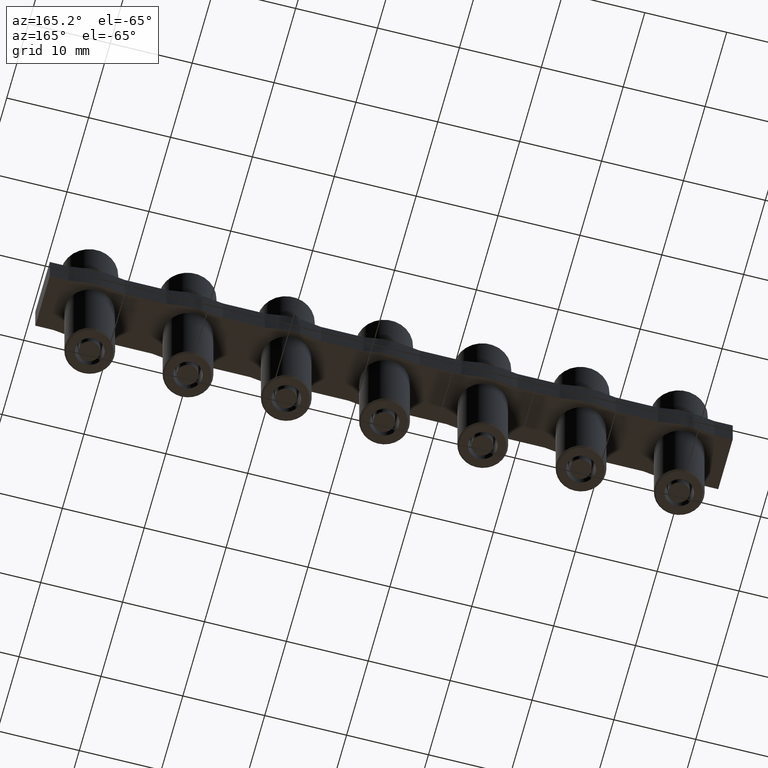
[diagram: clean part render]
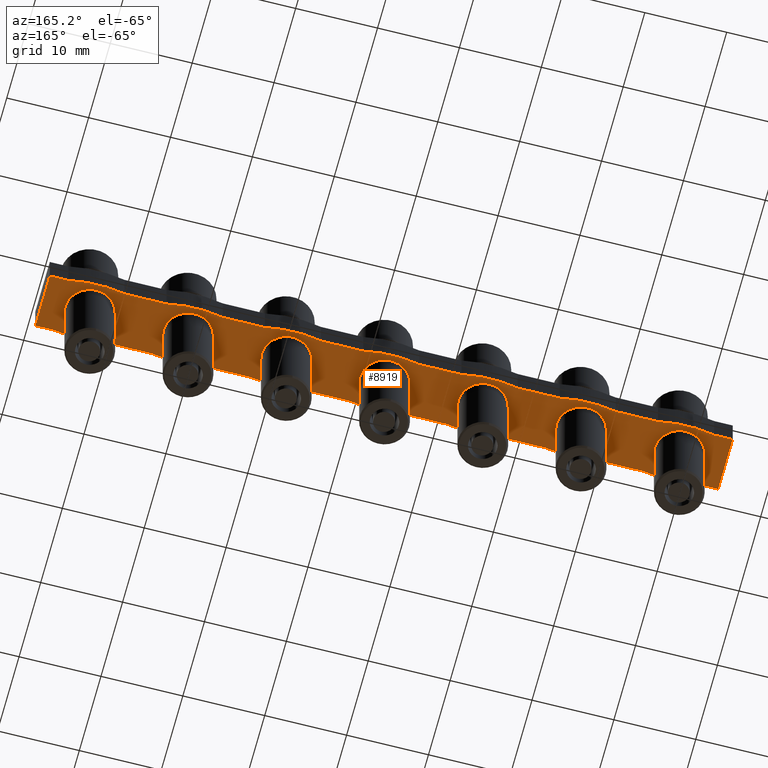
[diagram: same view with one face highlighted and labeled with its STEP entity id]
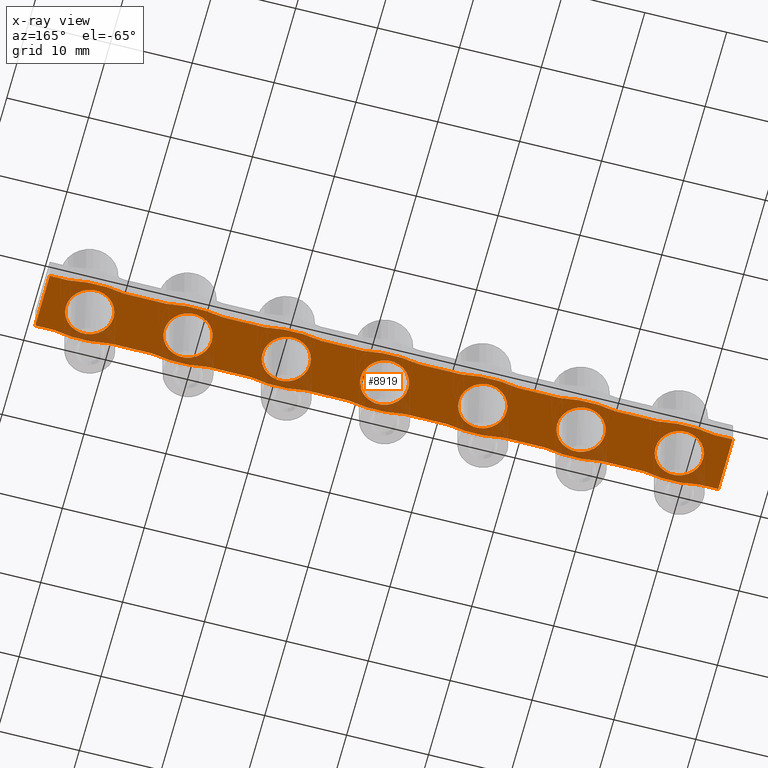
[diagram: x-ray of the same camera — body ghosted, the highlighted face saturated]
A machine part, auxiliary view. The second image highlights one B-rep face of the part: STEP entity #8919.
The next image is the same camera in x-ray: the body ghosted, the highlighted face saturated — about 12% of this face is hidden behind the body in this view.
In plain terms, the highlighted planar face has unit normal (0, 0, -1).
Its self-contained STEP definition (entity closure, byte-faithful):
#661 = FACE_OUTER_BOUND ( 'NONE', #1306, .T. ) ;
#667 = FACE_BOUND ( 'NONE', #1297, .T. ) ;
#671 = FACE_BOUND ( 'NONE', #1368, .T. ) ;
#672 = FACE_BOUND ( 'NONE', #1381, .T. ) ;
#673 = FACE_BOUND ( 'NONE', #1327, .T. ) ;
#674 = DIRECTION ( 'NONE',  ( 0.0000000000000000000, 0.0000000000000000000, -1.000000000000000000 ) ) ;
#677 = FACE_BOUND ( 'NONE', #1325, .T. ) ;
#679 = PLANE ( 'NONE',  #4140 ) ;
#680 = DIRECTION ( 'NONE',  ( -1.000000000000000000, 0.0000000000000000000, -0.0000000000000000000 ) ) ;
#689 = CARTESIAN_POINT ( 'NONE',  ( -89.85000000000005100, -3.349999999999926400, -4.800000000000001600 ) ) ;
#702 = FACE_BOUND ( 'NONE', #1278, .T. ) ;
#705 = FACE_BOUND ( 'NONE', #1378, .T. ) ;
#1027 = VERTEX_POINT ( 'NONE', #4819 ) ;
#1028 = VERTEX_POINT ( 'NONE', #4847 ) ;
#1029 = VERTEX_POINT ( 'NONE', #4842 ) ;
#1031 = VERTEX_POINT ( 'NONE', #4839 ) ;
#1032 = VERTEX_POINT ( 'NONE', #4880 ) ;
#1040 = VERTEX_POINT ( 'NONE', #4826 ) ;
#1047 = VERTEX_POINT ( 'NONE', #4851 ) ;
#1049 = VERTEX_POINT ( 'NONE', #4828 ) ;
#1050 = VERTEX_POINT ( 'NONE', #4824 ) ;
#1061 = VERTEX_POINT ( 'NONE', #4821 ) ;
#1072 = VERTEX_POINT ( 'NONE', #4845 ) ;
#1073 = VERTEX_POINT ( 'NONE', #4872 ) ;
#1278 = EDGE_LOOP ( 'NONE', ( #2145, #2133 ) ) ;
#1297 = EDGE_LOOP ( 'NONE', ( #2110, #2120 ) ) ;
#1306 = EDGE_LOOP ( 'NONE', ( #2114, #2109, #2108, #2067, #2046, #2122, #2111, #2095, #2049, #2050, #2143, #2096, #2090, #2051, #2138, #2106, #2058, #2052, #2057, #2097, #2060, #2061, #2130, #2064, #2129, #2107, #2121, #2137, #2086, #2144, #2123, #2104 ) ) ;
#1325 = EDGE_LOOP ( 'NONE', ( #2115, #2105 ) ) ;
#1327 = EDGE_LOOP ( 'NONE', ( #2085, #2202 ) ) ;
#1368 = EDGE_LOOP ( 'NONE', ( #2094, #2112 ) ) ;
#1378 = EDGE_LOOP ( 'NONE', ( #2126, #2184 ) ) ;
#1381 = EDGE_LOOP ( 'NONE', ( #2102, #2088 ) ) ;
#2046 = ORIENTED_EDGE ( 'NONE', *, *, #8696, .T. ) ;
#2049 = ORIENTED_EDGE ( 'NONE', *, *, #8673, .T. ) ;
#2050 = ORIENTED_EDGE ( 'NONE', *, *, #8600, .T. ) ;
#2051 = ORIENTED_EDGE ( 'NONE', *, *, #8617, .T. ) ;
#2052 = ORIENTED_EDGE ( 'NONE', *, *, #8646, .T. ) ;
#2057 = ORIENTED_EDGE ( 'NONE', *, *, #8527, .T. ) ;
#2058 = ORIENTED_EDGE ( 'NONE', *, *, #8575, .T. ) ;
#2060 = ORIENTED_EDGE ( 'NONE', *, *, #8616, .T. ) ;
#2061 = ORIENTED_EDGE ( 'NONE', *, *, #8595, .T. ) ;
#2064 = ORIENTED_EDGE ( 'NONE', *, *, #8621, .T. ) ;
#2067 = ORIENTED_EDGE ( 'NONE', *, *, #8636, .T. ) ;
#2085 = ORIENTED_EDGE ( 'NONE', *, *, #8606, .T. ) ;
#2086 = ORIENTED_EDGE ( 'NONE', *, *, #8579, .T. ) ;
#2088 = ORIENTED_EDGE ( 'NONE', *, *, #8578, .F. ) ;
#2090 = ORIENTED_EDGE ( 'NONE', *, *, #8619, .T. ) ;
#2094 = ORIENTED_EDGE ( 'NONE', *, *, #8601, .T. ) ;
#2095 = ORIENTED_EDGE ( 'NONE', *, *, #8577, .T. ) ;
#2096 = ORIENTED_EDGE ( 'NONE', *, *, #8594, .T. ) ;
#2097 = ORIENTED_EDGE ( 'NONE', *, *, #8574, .T. ) ;
#2102 = ORIENTED_EDGE ( 'NONE', *, *, #8422, .F. ) ;
#2104 = ORIENTED_EDGE ( 'NONE', *, *, #8630, .T. ) ;
#2105 = ORIENTED_EDGE ( 'NONE', *, *, #8351, .T. ) ;
#2106 = ORIENTED_EDGE ( 'NONE', *, *, #8652, .T. ) ;
#2107 = ORIENTED_EDGE ( 'NONE', *, *, #8581, .T. ) ;
#2108 = ORIENTED_EDGE ( 'NONE', *, *, #8631, .T. ) ;
#2109 = ORIENTED_EDGE ( 'NONE', *, *, #8599, .T. ) ;
#2110 = ORIENTED_EDGE ( 'NONE', *, *, #8593, .T. ) ;
#2111 = ORIENTED_EDGE ( 'NONE', *, *, #8635, .T. ) ;
#2112 = ORIENTED_EDGE ( 'NONE', *, *, #8530, .T. ) ;
#2114 = ORIENTED_EDGE ( 'NONE', *, *, #8698, .T. ) ;
#2115 = ORIENTED_EDGE ( 'NONE', *, *, #8602, .T. ) ;
#2120 = ORIENTED_EDGE ( 'NONE', *, *, #8501, .T. ) ;
#2121 = ORIENTED_EDGE ( 'NONE', *, *, #8513, .T. ) ;
#2122 = ORIENTED_EDGE ( 'NONE', *, *, #8697, .T. ) ;
#2123 = ORIENTED_EDGE ( 'NONE', *, *, #8622, .T. ) ;
#2126 = ORIENTED_EDGE ( 'NONE', *, *, #8584, .T. ) ;
#2129 = ORIENTED_EDGE ( 'NONE', *, *, #8605, .T. ) ;
#2130 = ORIENTED_EDGE ( 'NONE', *, *, #8598, .T. ) ;
#2133 = ORIENTED_EDGE ( 'NONE', *, *, #8355, .T. ) ;
#2137 = ORIENTED_EDGE ( 'NONE', *, *, #8620, .T. ) ;
#2138 = ORIENTED_EDGE ( 'NONE', *, *, #8596, .T. ) ;
#2143 = ORIENTED_EDGE ( 'NONE', *, *, #8607, .T. ) ;
#2144 = ORIENTED_EDGE ( 'NONE', *, *, #8634, .T. ) ;
#2145 = ORIENTED_EDGE ( 'NONE', *, *, #8604, .T. ) ;
#2184 = ORIENTED_EDGE ( 'NONE', *, *, #8313, .T. ) ;
#2202 = ORIENTED_EDGE ( 'NONE', *, *, #9347, .T. ) ;
#2271 = VERTEX_POINT ( 'NONE', #4966 ) ;
#2281 = VERTEX_POINT ( 'NONE', #5004 ) ;
#2289 = VERTEX_POINT ( 'NONE', #5006 ) ;
#2301 = VERTEX_POINT ( 'NONE', #5038 ) ;
#2318 = VERTEX_POINT ( 'NONE', #5010 ) ;
#2325 = VERTEX_POINT ( 'NONE', #5032 ) ;
#2334 = VERTEX_POINT ( 'NONE', #5019 ) ;
#2335 = VERTEX_POINT ( 'NONE', #5061 ) ;
#2338 = VERTEX_POINT ( 'NONE', #5042 ) ;
#2339 = VERTEX_POINT ( 'NONE', #5034 ) ;
#2343 = VERTEX_POINT ( 'NONE', #5044 ) ;
#2349 = VERTEX_POINT ( 'NONE', #5072 ) ;
#2353 = VERTEX_POINT ( 'NONE', #5015 ) ;
#2354 = VERTEX_POINT ( 'NONE', #5060 ) ;
#2359 = VERTEX_POINT ( 'NONE', #5067 ) ;
#2361 = VERTEX_POINT ( 'NONE', #5071 ) ;
#2365 = VERTEX_POINT ( 'NONE', #5097 ) ;
#2370 = VERTEX_POINT ( 'NONE', #5126 ) ;
#2371 = VERTEX_POINT ( 'NONE', #5075 ) ;
#2373 = VERTEX_POINT ( 'NONE', #5099 ) ;
#2375 = VERTEX_POINT ( 'NONE', #5095 ) ;
#2376 = VERTEX_POINT ( 'NONE', #5136 ) ;
#2379 = VERTEX_POINT ( 'NONE', #5085 ) ;
#2383 = VERTEX_POINT ( 'NONE', #5100 ) ;
#2387 = VERTEX_POINT ( 'NONE', #5081 ) ;
#2389 = VERTEX_POINT ( 'NONE', #5102 ) ;
#2412 = LINE ( 'NONE', #2414, #3753 ) ;
#2414 = CARTESIAN_POINT ( 'NONE',  ( -89.85000000000005100, 3.350000000000082700, -4.800000000000001600 ) ) ;
#2419 = DIRECTION ( 'NONE',  ( 1.000000000000000000, -0.0000000000000000000, 0.0000000000000000000 ) ) ;
#2423 = DIRECTION ( 'NONE',  ( -0.0000000000000000000, -0.0000000000000000000, -1.000000000000000000 ) ) ;
#2428 = DIRECTION ( 'NONE',  ( 1.000000000000000000, -7.061706185392220900E-015, 0.0000000000000000000 ) ) ;
#2431 = CARTESIAN_POINT ( 'NONE',  ( 12.00000000000000400, -13.25000000000034300, -4.800000000000001600 ) ) ;
#2434 = DIRECTION ( 'NONE',  ( -1.000000000000000000, 0.0000000000000000000, 0.0000000000000000000 ) ) ;
#2435 = LINE ( 'NONE', #2447, #3797 ) ;
#2436 = DIRECTION ( 'NONE',  ( -0.0000000000000000000, -0.0000000000000000000, -1.000000000000000000 ) ) ;
#2439 = DIRECTION ( 'NONE',  ( 0.0000000000000000000, 0.0000000000000000000, -1.000000000000000000 ) ) ;
#2440 = DIRECTION ( 'NONE',  ( -1.000000000000000000, 0.0000000000000000000, -0.0000000000000000000 ) ) ;
#2441 = CARTESIAN_POINT ( 'NONE',  ( -0.06167760658913092100, 0.0000000000000000000, -4.800000000000001600 ) ) ;
#2446 = DIRECTION ( 'NONE',  ( 1.000000000000000000, -5.321865531020225000E-015, 0.0000000000000000000 ) ) ;
#2447 = CARTESIAN_POINT ( 'NONE',  ( -89.85000000000005100, -3.349999999999919700, -4.800000000000001600 ) ) ;
#2448 = CARTESIAN_POINT ( 'NONE',  ( -60.00000000000000000, -13.25000000000035700, -4.800000000000001600 ) ) ;
#2449 = CARTESIAN_POINT ( 'NONE',  ( 3.469446951953614200E-015, 13.45000000000008500, -4.800000000000001600 ) ) ;
#2450 = DIRECTION ( 'NONE',  ( -1.000000000000000000, 0.0000000000000000000, 0.0000000000000000000 ) ) ;
#2454 = CARTESIAN_POINT ( 'NONE',  ( -48.06167760658912900, -9.157165865975065600E-015, -4.799999999988813200 ) ) ;
#2455 = DIRECTION ( 'NONE',  ( -1.000000000000000000, 0.0000000000000000000, 0.0000000000000000000 ) ) ;
#2461 = DIRECTION ( 'NONE',  ( -1.000000000000000000, 0.0000000000000000000, 0.0000000000000000000 ) ) ;
#2465 = DIRECTION ( 'NONE',  ( 0.0000000000000000000, 0.0000000000000000000, -1.000000000000000000 ) ) ;
#2471 = LINE ( 'NONE', #2476, #3781 ) ;
#2476 = CARTESIAN_POINT ( 'NONE',  ( 17.69999999999921800, 3.350000000000086700, -4.800000000000002500 ) ) ;
#2478 = CARTESIAN_POINT ( 'NONE',  ( -12.06167760658913000, -2.289291466493766400E-015, -4.799999999988813200 ) ) ;
#2479 = DIRECTION ( 'NONE',  ( -0.0000000000000000000, -0.0000000000000000000, 1.000000000000000000 ) ) ;
#2484 = CARTESIAN_POINT ( 'NONE',  ( -36.00000000000000700, -13.25000000000035200, -4.800000000000001600 ) ) ;
#2485 = DIRECTION ( 'NONE',  ( -0.0000000000000000000, -0.0000000000000000000, 1.000000000000000000 ) ) ;
#2490 = DIRECTION ( 'NONE',  ( -0.0000000000000000000, -0.0000000000000000000, -1.000000000000000000 ) ) ;
#2493 = DIRECTION ( 'NONE',  ( -1.000000000000000000, 0.0000000000000000000, -0.0000000000000000000 ) ) ;
#2494 = CARTESIAN_POINT ( 'NONE',  ( -48.00000000000000000, 13.45000000000007600, -4.800000000000001600 ) ) ;
#2495 = CARTESIAN_POINT ( 'NONE',  ( -36.06167760658913600, -6.867874399481300400E-015, -4.799999999988813200 ) ) ;
#2496 = DIRECTION ( 'NONE',  ( 1.000000000000000000, -1.064373106204044800E-014, 0.0000000000000000000 ) ) ;
#2497 = DIRECTION ( 'NONE',  ( -0.0000000000000000000, -0.0000000000000000000, 1.000000000000000000 ) ) ;
#2498 = CARTESIAN_POINT ( 'NONE',  ( -48.00000000000000000, -13.25000000000035300, -4.800000000000001600 ) ) ;
#2499 = DIRECTION ( 'NONE',  ( -0.0000000000000000000, -0.0000000000000000000, 1.000000000000000000 ) ) ;
#2500 = DIRECTION ( 'NONE',  ( -0.0000000000000000000, -0.0000000000000000000, 1.000000000000000000 ) ) ;
#2501 = DIRECTION ( 'NONE',  ( -1.000000000000000000, 0.0000000000000000000, 0.0000000000000000000 ) ) ;
#2502 = DIRECTION ( 'NONE',  ( 0.0000000000000000000, 0.0000000000000000000, -1.000000000000000000 ) ) ;
#2504 = CARTESIAN_POINT ( 'NONE',  ( -113.8500000000000700, 3.350000000000077800, -4.800000000000001600 ) ) ;
#2505 = DIRECTION ( 'NONE',  ( 1.000000000000000000, -0.0000000000000000000, 0.0000000000000000000 ) ) ;
#2507 = LINE ( 'NONE', #2511, #3815 ) ;
#2509 = CARTESIAN_POINT ( 'NONE',  ( -24.06167760658912900, -4.578582932987532800E-015, -4.799999999988813200 ) ) ;
#2511 = CARTESIAN_POINT ( 'NONE',  ( -89.85000000000005100, -3.349999999999918400, -4.800000000000001600 ) ) ;
#2512 = DIRECTION ( 'NONE',  ( 1.000000000000000000, -0.0000000000000000000, 0.0000000000000000000 ) ) ;
#2513 = DIRECTION ( 'NONE',  ( -1.000000000000000000, 0.0000000000000000000, 0.0000000000000000000 ) ) ;
#2514 = CARTESIAN_POINT ( 'NONE',  ( -60.06167760658912900, -1.144645733246883200E-014, -4.799999999988813200 ) ) ;
#2515 = DIRECTION ( 'NONE',  ( -0.0000000000000000000, -0.0000000000000000000, 1.000000000000000000 ) ) ;
#2516 = LINE ( 'NONE', #2525, #3793 ) ;
#2517 = DIRECTION ( 'NONE',  ( -1.000000000000000000, 0.0000000000000000000, 0.0000000000000000000 ) ) ;
#2519 = DIRECTION ( 'NONE',  ( -1.000000000000000000, 0.0000000000000000000, 0.0000000000000000000 ) ) ;
#2520 = DIRECTION ( 'NONE',  ( -0.0000000000000000000, -0.0000000000000000000, -1.000000000000000000 ) ) ;
#2522 = DIRECTION ( 'NONE',  ( 0.0000000000000000000, -1.000000000000000000, 0.0000000000000000000 ) ) ;
#2523 = LINE ( 'NONE', #2504, #3819 ) ;
#2524 = DIRECTION ( 'NONE',  ( 1.000000000000000000, -1.064373106204044800E-014, 0.0000000000000000000 ) ) ;
#2525 = CARTESIAN_POINT ( 'NONE',  ( -89.85000000000005100, 3.350000000000082700, -4.800000000000001600 ) ) ;
#2527 = LINE ( 'NONE', #2528, #3798 ) ;
#2528 = CARTESIAN_POINT ( 'NONE',  ( -77.85000000000005100, -3.349999999999912600, -4.800000000000001600 ) ) ;
#2531 = DIRECTION ( 'NONE',  ( -1.000000000000000000, 0.0000000000000000000, -0.0000000000000000000 ) ) ;
#2532 = DIRECTION ( 'NONE',  ( -1.000000000000000000, 0.0000000000000000000, 0.0000000000000000000 ) ) ;
#2534 = CARTESIAN_POINT ( 'NONE',  ( 11.93832239341087000, 1.465963500825148300E-015, -4.799999999988813200 ) ) ;
#2537 = LINE ( 'NONE', #2539, #3813 ) ;
#2539 = CARTESIAN_POINT ( 'NONE',  ( -77.85000000000005100, 3.350000000000085400, -4.800000000000001600 ) ) ;
#2543 = DIRECTION ( 'NONE',  ( 1.000000000000000000, 0.0000000000000000000, 0.0000000000000000000 ) ) ;
#2544 = DIRECTION ( 'NONE',  ( -1.000000000000000000, 0.0000000000000000000, 0.0000000000000000000 ) ) ;
#2546 = LINE ( 'NONE', #2549, #3810 ) ;
#2549 = CARTESIAN_POINT ( 'NONE',  ( -101.8500000000000500, 3.350000000000080000, -4.800000000000001600 ) ) ;
#2550 = DIRECTION ( 'NONE',  ( 1.000000000000000000, -0.0000000000000000000, 0.0000000000000000000 ) ) ;
#2560 = DIRECTION ( 'NONE',  ( -0.0000000000000000000, -0.0000000000000000000, -1.000000000000000000 ) ) ;
#2561 = CARTESIAN_POINT ( 'NONE',  ( -11.99999999999999600, 13.45000000000008300, -4.800000000000001600 ) ) ;
#2562 = DIRECTION ( 'NONE',  ( 0.0000000000000000000, 0.0000000000000000000, -1.000000000000000000 ) ) ;
#2566 = LINE ( 'NONE', #2567, #3804 ) ;
#2567 = CARTESIAN_POINT ( 'NONE',  ( -101.8500000000000500, -3.349999999999922400, -4.800000000000001600 ) ) ;
#2572 = CARTESIAN_POINT ( 'NONE',  ( -23.99999999999999600, -13.25000000000035000, -4.800000000000001600 ) ) ;
#2573 = DIRECTION ( 'NONE',  ( 1.000000000000000000, -0.0000000000000000000, 0.0000000000000000000 ) ) ;
#2576 = DIRECTION ( 'NONE',  ( -1.000000000000000000, 0.0000000000000000000, 0.0000000000000000000 ) ) ;
#2580 = DIRECTION ( 'NONE',  ( 0.0000000000000000000, 0.0000000000000000000, -1.000000000000000000 ) ) ;
#2581 = CARTESIAN_POINT ( 'NONE',  ( -36.00000000000000700, 13.45000000000007700, -4.800000000000001600 ) ) ;
#2586 = DIRECTION ( 'NONE',  ( 0.0000000000000000000, 0.0000000000000000000, -1.000000000000000000 ) ) ;
#2592 = CARTESIAN_POINT ( 'NONE',  ( 12.00000000000000400, 13.45000000000008600, -4.800000000000001600 ) ) ;
#2595 = DIRECTION ( 'NONE',  ( -1.000000000000000000, 0.0000000000000000000, 0.0000000000000000000 ) ) ;
#2599 = CARTESIAN_POINT ( 'NONE',  ( -125.8500000000000800, -3.349999999999926800, -4.800000000000001600 ) ) ;
#2602 = LINE ( 'NONE', #2612, #3838 ) ;
#2604 = DIRECTION ( 'NONE',  ( -1.000000000000000000, 0.0000000000000000000, -0.0000000000000000000 ) ) ;
#2607 = DIRECTION ( 'NONE',  ( -1.000000000000000000, 0.0000000000000000000, -0.0000000000000000000 ) ) ;
#2610 = LINE ( 'NONE', #2599, #3825 ) ;
#2612 = CARTESIAN_POINT ( 'NONE',  ( -137.8500000000000500, 3.350000000000073400, -4.800000000000001600 ) ) ;
#2614 = CARTESIAN_POINT ( 'NONE',  ( -23.99999999999999600, 13.45000000000007900, -4.800000000000001600 ) ) ;
#2615 = DIRECTION ( 'NONE',  ( 0.0000000000000000000, 0.0000000000000000000, -1.000000000000000000 ) ) ;
#2616 = DIRECTION ( 'NONE',  ( -1.000000000000000000, 0.0000000000000000000, 0.0000000000000000000 ) ) ;
#2619 = DIRECTION ( 'NONE',  ( 1.000000000000000000, -0.0000000000000000000, 0.0000000000000000000 ) ) ;
#2626 = CARTESIAN_POINT ( 'NONE',  ( 3.469446951953614200E-015, -13.25000000000034500, -4.800000000000001600 ) ) ;
#2627 = DIRECTION ( 'NONE',  ( -1.000000000000000000, 0.0000000000000000000, 0.0000000000000000000 ) ) ;
#2640 = DIRECTION ( 'NONE',  ( 0.0000000000000000000, 0.0000000000000000000, -1.000000000000000000 ) ) ;
#2646 = CARTESIAN_POINT ( 'NONE',  ( -60.00000000000000000, 13.45000000000007400, -4.800000000000001600 ) ) ;
#2650 = DIRECTION ( 'NONE',  ( -0.0000000000000000000, -0.0000000000000000000, -1.000000000000000000 ) ) ;
#2654 = DIRECTION ( 'NONE',  ( 1.000000000000000000, -4.400773419882108800E-015, 0.0000000000000000000 ) ) ;
#2664 = DIRECTION ( 'NONE',  ( 1.000000000000000000, 0.0000000000000000000, 0.0000000000000000000 ) ) ;
#2674 = DIRECTION ( 'NONE',  ( -0.0000000000000000000, -0.0000000000000000000, -1.000000000000000000 ) ) ;
#2677 = CARTESIAN_POINT ( 'NONE',  ( -11.99999999999999600, -13.25000000000034600, -4.800000000000001600 ) ) ;
#2714 = CARTESIAN_POINT ( 'NONE',  ( -125.8500000000000800, 3.350000000000075600, -4.800000000000001600 ) ) ;
#2733 = LINE ( 'NONE', #2714, #3871 ) ;
#2791 = DIRECTION ( 'NONE',  ( 1.000000000000000000, -0.0000000000000000000, 0.0000000000000000000 ) ) ;
#2798 = LINE ( 'NONE', #2820, #3913 ) ;
#2815 = LINE ( 'NONE', #2818, #3910 ) ;
#2818 = CARTESIAN_POINT ( 'NONE',  ( -137.8500000000000500, -3.349999999999929000, -4.800000000000001600 ) ) ;
#2819 = DIRECTION ( 'NONE',  ( -1.000000000000000000, 0.0000000000000000000, -0.0000000000000000000 ) ) ;
#2820 = CARTESIAN_POINT ( 'NONE',  ( -65.69999999999998900, 7.221084286606887800, -4.800000000000001600 ) ) ;
#2842 = CARTESIAN_POINT ( 'NONE',  ( -113.8500000000000700, -3.349999999999924600, -4.800000000000001600 ) ) ;
#2845 = DIRECTION ( 'NONE',  ( -1.000000000000000000, 0.0000000000000000000, -0.0000000000000000000 ) ) ;
#2861 = LINE ( 'NONE', #2842, #3922 ) ;
#2869 = DIRECTION ( 'NONE',  ( -2.009125974575783600E-016, 1.000000000000000000, 0.0000000000000000000 ) ) ;
#3376 = AXIS2_PLACEMENT_3D ( 'NONE', #7050, #7052, #7055 ) ;
#3416 = CIRCLE ( 'NONE', #3376, 2.899999999903556200 ) ;
#3447 = CIRCLE ( 'NONE', #3485, 2.899999999903556200 ) ;
#3458 = AXIS2_PLACEMENT_3D ( 'NONE', #7173, #7174, #7175 ) ;
#3485 = AXIS2_PLACEMENT_3D ( 'NONE', #7154, #7159, #7178 ) ;
#3489 = CIRCLE ( 'NONE', #3458, 2.899999999903556200 ) ;
#3513 = AXIS2_PLACEMENT_3D ( 'NONE', #7487, #7488, #7548 ) ;
#3524 = CIRCLE ( 'NONE', #3513, 2.899999999914742800 ) ;
#3646 = CIRCLE ( 'NONE', #3654, 2.899999999903554400 ) ;
#3654 = AXIS2_PLACEMENT_3D ( 'NONE', #8038, #8027, #7976 ) ;
#3680 = VECTOR ( 'NONE', #8076, 1000.000000000000000 ) ;
#3707 = AXIS2_PLACEMENT_3D ( 'NONE', #8160, #8149, #8150 ) ;
#3732 = CIRCLE ( 'NONE', #3707, 2.899999999903100100 ) ;
#3744 = VECTOR ( 'NONE', #8123, 1000.000000000000000 ) ;
#3748 = CIRCLE ( 'NONE', #3774, 2.899999999903554400 ) ;
#3749 = CIRCLE ( 'NONE', #3750, 16.95000000000022000 ) ;
#3750 = AXIS2_PLACEMENT_3D ( 'NONE', #2484, #2490, #2524 ) ;
#3751 = CIRCLE ( 'NONE', #3786, 16.95000000000022000 ) ;
#3753 = VECTOR ( 'NONE', #2419, 1000.000000000000000 ) ;
#3754 = AXIS2_PLACEMENT_3D ( 'NONE', #2494, #2502, #2513 ) ;
#3764 = AXIS2_PLACEMENT_3D ( 'NONE', #2454, #2479, #2450 ) ;
#3768 = CIRCLE ( 'NONE', #3788, 17.15000000000021900 ) ;
#3771 = CIRCLE ( 'NONE', #3779, 16.95000000000021600 ) ;
#3774 = AXIS2_PLACEMENT_3D ( 'NONE', #2478, #2485, #2455 ) ;
#3775 = CIRCLE ( 'NONE', #3754, 17.15000000000021900 ) ;
#3776 = AXIS2_PLACEMENT_3D ( 'NONE', #2441, #2439, #2434 ) ;
#3779 = AXIS2_PLACEMENT_3D ( 'NONE', #2448, #2436, #2446 ) ;
#3781 = VECTOR ( 'NONE', #2522, 1000.000000000000000 ) ;
#3782 = CIRCLE ( 'NONE', #3794, 2.899999999903556200 ) ;
#3784 = CIRCLE ( 'NONE', #3787, 16.95000000000022000 ) ;
#3786 = AXIS2_PLACEMENT_3D ( 'NONE', #2431, #2423, #2428 ) ;
#3787 = AXIS2_PLACEMENT_3D ( 'NONE', #2498, #2520, #2496 ) ;
#3788 = AXIS2_PLACEMENT_3D ( 'NONE', #2449, #2465, #2461 ) ;
#3790 = CIRCLE ( 'NONE', #3776, 2.899999999914742800 ) ;
#3791 = CIRCLE ( 'NONE', #3792, 2.899999999903100100 ) ;
#3792 = AXIS2_PLACEMENT_3D ( 'NONE', #2534, #2497, #2501 ) ;
#3793 = VECTOR ( 'NONE', #2512, 1000.000000000000000 ) ;
#3794 = AXIS2_PLACEMENT_3D ( 'NONE', #2509, #2499, #2519 ) ;
#3797 = VECTOR ( 'NONE', #2440, 1000.000000000000000 ) ;
#3798 = VECTOR ( 'NONE', #2493, 1000.000000000000000 ) ;
#3799 = CIRCLE ( 'NONE', #3800, 2.899999999903556200 ) ;
#3800 = AXIS2_PLACEMENT_3D ( 'NONE', #2495, #2500, #2532 ) ;
#3801 = CIRCLE ( 'NONE', #3764, 2.899999999903556200 ) ;
#3802 = AXIS2_PLACEMENT_3D ( 'NONE', #2592, #2586, #2576 ) ;
#3803 = AXIS2_PLACEMENT_3D ( 'NONE', #2572, #2560, #2543 ) ;
#3804 = VECTOR ( 'NONE', #2607, 1000.000000000000000 ) ;
#3806 = CIRCLE ( 'NONE', #3834, 17.15000000000021900 ) ;
#3810 = VECTOR ( 'NONE', #2550, 1000.000000000000000 ) ;
#3813 = VECTOR ( 'NONE', #2573, 1000.000000000000000 ) ;
#3815 = VECTOR ( 'NONE', #2531, 1000.000000000000000 ) ;
#3818 = AXIS2_PLACEMENT_3D ( 'NONE', #2581, #2580, #2595 ) ;
#3819 = VECTOR ( 'NONE', #2505, 1000.000000000000000 ) ;
#3823 = CIRCLE ( 'NONE', #3847, 17.15000000000021900 ) ;
#3825 = VECTOR ( 'NONE', #2604, 1000.000000000000000 ) ;
#3828 = CIRCLE ( 'NONE', #3802, 17.15000000000021900 ) ;
#3830 = CIRCLE ( 'NONE', #3832, 17.15000000000021900 ) ;
#3831 = AXIS2_PLACEMENT_3D ( 'NONE', #2514, #2515, #2517 ) ;
#3832 = AXIS2_PLACEMENT_3D ( 'NONE', #2614, #2615, #2616 ) ;
#3834 = AXIS2_PLACEMENT_3D ( 'NONE', #2646, #2640, #2627 ) ;
#3838 = VECTOR ( 'NONE', #2619, 1000.000000000000000 ) ;
#3841 = CIRCLE ( 'NONE', #3803, 16.95000000000022000 ) ;
#3845 = CIRCLE ( 'NONE', #3831, 2.899999999903556200 ) ;
#3847 = AXIS2_PLACEMENT_3D ( 'NONE', #2561, #2562, #2544 ) ;
#3851 = CIRCLE ( 'NONE', #3818, 17.15000000000021900 ) ;
#3854 = AXIS2_PLACEMENT_3D ( 'NONE', #2677, #2674, #2664 ) ;
#3857 = CIRCLE ( 'NONE', #3868, 16.95000000000022000 ) ;
#3868 = AXIS2_PLACEMENT_3D ( 'NONE', #2626, #2650, #2654 ) ;
#3871 = VECTOR ( 'NONE', #2791, 1000.000000000000000 ) ;
#3876 = CIRCLE ( 'NONE', #3854, 16.95000000000022000 ) ;
#3910 = VECTOR ( 'NONE', #2819, 1000.000000000000000 ) ;
#3913 = VECTOR ( 'NONE', #2869, 1000.000000000000000 ) ;
#3922 = VECTOR ( 'NONE', #2845, 1000.000000000000000 ) ;
#4140 = AXIS2_PLACEMENT_3D ( 'NONE', #689, #674, #680 ) ;
#4819 = CARTESIAN_POINT ( 'NONE',  ( -8.573266861864919300, 3.350000000000082700, -4.800000000000001600 ) ) ;
#4821 = CARTESIAN_POINT ( 'NONE',  ( -65.69999999999998900, 3.350000000000073400, -4.800000000000001600 ) ) ;
#4824 = CARTESIAN_POINT ( 'NONE',  ( -32.57326686186492300, 3.350000000000077800, -4.800000000000001600 ) ) ;
#4826 = CARTESIAN_POINT ( 'NONE',  ( -44.57326686186492300, 3.350000000000075600, -4.800000000000001600 ) ) ;
#4828 = CARTESIAN_POINT ( 'NONE',  ( -56.57326686186491600, 3.350000000000073400, -4.800000000000001600 ) ) ;
#4839 = CARTESIAN_POINT ( 'NONE',  ( 17.69999999999921800, -3.349999999999912600, -4.800000000000001600 ) ) ;
#4842 = CARTESIAN_POINT ( 'NONE',  ( -44.55289976937029900, -3.349999999999925500, -4.800000000000001600 ) ) ;
#4845 = CARTESIAN_POINT ( 'NONE',  ( -51.44710023062970800, -3.349999999999926800, -4.800000000000001600 ) ) ;
#4847 = CARTESIAN_POINT ( 'NONE',  ( -20.55289976937029200, -3.349999999999921000, -4.800000000000001600 ) ) ;
#4851 = CARTESIAN_POINT ( 'NONE',  ( -15.44710023062970800, -3.349999999999919700, -4.800000000000001600 ) ) ;
#4872 = CARTESIAN_POINT ( 'NONE',  ( -65.69999999999998900, -3.349999999999929000, -4.800000000000001600 ) ) ;
#4880 = CARTESIAN_POINT ( 'NONE',  ( 3.447100230629708100, -3.349999999999916600, -4.800000000000001600 ) ) ;
#4966 = CARTESIAN_POINT ( 'NONE',  ( 14.83832239331397000, 1.827234306567174700E-015, -4.799999999988813200 ) ) ;
#5004 = CARTESIAN_POINT ( 'NONE',  ( 9.038322393507769400, 1.465963500825148300E-015, -4.799999999988813200 ) ) ;
#5006 = CARTESIAN_POINT ( 'NONE',  ( -8.552899769370291900, -3.349999999999918400, -4.800000000000001600 ) ) ;
#5010 = CARTESIAN_POINT ( 'NONE',  ( -2.961677606503873700, 0.0000000000000000000, -4.800000000000001600 ) ) ;
#5015 = CARTESIAN_POINT ( 'NONE',  ( -27.44710023062970800, -3.349999999999922400, -4.800000000000001600 ) ) ;
#5019 = CARTESIAN_POINT ( 'NONE',  ( 15.44710023062973500, -3.349999999999912600, -4.800000000000001600 ) ) ;
#5032 = CARTESIAN_POINT ( 'NONE',  ( 8.573266861864906800, 3.350000000000084500, -4.800000000000001600 ) ) ;
#5034 = CARTESIAN_POINT ( 'NONE',  ( -32.55289976937029900, -3.349999999999923300, -4.800000000000001600 ) ) ;
#5038 = CARTESIAN_POINT ( 'NONE',  ( 2.838322393325611400, 3.612708057427791100E-016, -4.800000000000001600 ) ) ;
#5042 = CARTESIAN_POINT ( 'NONE',  ( 17.69999999999921800, 3.350000000000085400, -4.800000000000001600 ) ) ;
#5044 = CARTESIAN_POINT ( 'NONE',  ( -3.447100230629704500, -3.349999999999917500, -4.800000000000001600 ) ) ;
#5060 = CARTESIAN_POINT ( 'NONE',  ( -63.44710023062970100, -3.349999999999929000, -4.800000000000001600 ) ) ;
#5061 = CARTESIAN_POINT ( 'NONE',  ( 3.426733138135087800, 3.350000000000082700, -4.800000000000001600 ) ) ;
#5067 = CARTESIAN_POINT ( 'NONE',  ( -51.42673313813508400, 3.350000000000075600, -4.800000000000001600 ) ) ;
#5071 = CARTESIAN_POINT ( 'NONE',  ( -20.57326686186491900, 3.350000000000080000, -4.800000000000001600 ) ) ;
#5072 = CARTESIAN_POINT ( 'NONE',  ( -3.426733138135080300, 3.350000000000084500, -4.800000000000001600 ) ) ;
#5075 = CARTESIAN_POINT ( 'NONE',  ( -56.55289976937029200, -3.349999999999927700, -4.800000000000001600 ) ) ;
#5081 = CARTESIAN_POINT ( 'NONE',  ( -39.42673313813508400, 3.350000000000077800, -4.800000000000001600 ) ) ;
#5085 = CARTESIAN_POINT ( 'NONE',  ( 15.42673313813511400, 3.350000000000085400, -4.800000000000001600 ) ) ;
#5095 = CARTESIAN_POINT ( 'NONE',  ( -39.44710023062970800, -3.349999999999924600, -4.800000000000001600 ) ) ;
#5097 = CARTESIAN_POINT ( 'NONE',  ( 8.552899769370302600, -3.349999999999916600, -4.800000000000001600 ) ) ;
#5099 = CARTESIAN_POINT ( 'NONE',  ( -14.96167760649268500, -2.289291466493766400E-015, -4.799999999988813200 ) ) ;
#5100 = CARTESIAN_POINT ( 'NONE',  ( -9.161677606685577400, -1.928020660751684300E-015, -4.799999999988813200 ) ) ;
#5102 = CARTESIAN_POINT ( 'NONE',  ( -27.42673313813508100, 3.350000000000080000, -4.800000000000001600 ) ) ;
#5126 = CARTESIAN_POINT ( 'NONE',  ( -15.42673313813508100, 3.350000000000082700, -4.800000000000001600 ) ) ;
#5136 = CARTESIAN_POINT ( 'NONE',  ( -63.42673313813507000, 3.350000000000073400, -4.800000000000001600 ) ) ;
#5155 = CARTESIAN_POINT ( 'NONE',  ( -50.96167760649268500, -9.157165865975065600E-015, -4.799999999988813200 ) ) ;
#5170 = CARTESIAN_POINT ( 'NONE',  ( -57.16167760668557200, -1.108518652672674800E-014, -4.799999999988813200 ) ) ;
#5181 = CARTESIAN_POINT ( 'NONE',  ( -62.96167760649268500, -1.144645733246883200E-014, -4.799999999988813200 ) ) ;
#5193 = CARTESIAN_POINT ( 'NONE',  ( -45.16167760668557200, -8.795895060232983900E-015, -4.799999999988813200 ) ) ;
#5206 = CARTESIAN_POINT ( 'NONE',  ( -33.16167760668557900, -6.506603593739217900E-015, -4.799999999988813200 ) ) ;
#5212 = CARTESIAN_POINT ( 'NONE',  ( -26.96167760649268500, -4.578582932987532800E-015, -4.799999999988813200 ) ) ;
#5225 = CARTESIAN_POINT ( 'NONE',  ( -38.96167760649269200, -6.867874399481300400E-015, -4.799999999988813200 ) ) ;
#5260 = CARTESIAN_POINT ( 'NONE',  ( -21.16167760668557200, -4.217312127245450300E-015, -4.799999999988813200 ) ) ;
#6858 = VERTEX_POINT ( 'NONE', #5193 ) ;
#6864 = VERTEX_POINT ( 'NONE', #5155 ) ;
#6872 = VERTEX_POINT ( 'NONE', #5181 ) ;
#6901 = VERTEX_POINT ( 'NONE', #5170 ) ;
#6920 = VERTEX_POINT ( 'NONE', #5206 ) ;
#6926 = VERTEX_POINT ( 'NONE', #5225 ) ;
#6942 = VERTEX_POINT ( 'NONE', #5212 ) ;
#6967 = VERTEX_POINT ( 'NONE', #5260 ) ;
#7050 = CARTESIAN_POINT ( 'NONE',  ( -48.06167760658912900, -9.157165865975065600E-015, -4.799999999988813200 ) ) ;
#7052 = DIRECTION ( 'NONE',  ( -0.0000000000000000000, -0.0000000000000000000, 1.000000000000000000 ) ) ;
#7055 = DIRECTION ( 'NONE',  ( -1.000000000000000000, 0.0000000000000000000, 0.0000000000000000000 ) ) ;
#7154 = CARTESIAN_POINT ( 'NONE',  ( -24.06167760658912900, -4.578582932987532800E-015, -4.799999999988813200 ) ) ;
#7159 = DIRECTION ( 'NONE',  ( -0.0000000000000000000, -0.0000000000000000000, 1.000000000000000000 ) ) ;
#7173 = CARTESIAN_POINT ( 'NONE',  ( -36.06167760658913600, -6.867874399481300400E-015, -4.799999999988813200 ) ) ;
#7174 = DIRECTION ( 'NONE',  ( -0.0000000000000000000, -0.0000000000000000000, 1.000000000000000000 ) ) ;
#7175 = DIRECTION ( 'NONE',  ( -1.000000000000000000, 0.0000000000000000000, 0.0000000000000000000 ) ) ;
#7178 = DIRECTION ( 'NONE',  ( -1.000000000000000000, 0.0000000000000000000, 0.0000000000000000000 ) ) ;
#7487 = CARTESIAN_POINT ( 'NONE',  ( -0.06167760658913092100, 0.0000000000000000000, -4.800000000000001600 ) ) ;
#7488 = DIRECTION ( 'NONE',  ( 0.0000000000000000000, 0.0000000000000000000, -1.000000000000000000 ) ) ;
#7548 = DIRECTION ( 'NONE',  ( -1.000000000000000000, 0.0000000000000000000, 0.0000000000000000000 ) ) ;
#7946 = AXIS2_PLACEMENT_3D ( 'NONE', #9598, #9580, #9579 ) ;
#7959 = CIRCLE ( 'NONE', #7946, 2.899999999903556200 ) ;
#7976 = DIRECTION ( 'NONE',  ( -1.000000000000000000, 0.0000000000000000000, 0.0000000000000000000 ) ) ;
#8027 = DIRECTION ( 'NONE',  ( -0.0000000000000000000, -0.0000000000000000000, 1.000000000000000000 ) ) ;
#8038 = CARTESIAN_POINT ( 'NONE',  ( -12.06167760658913000, -2.289291466493766400E-015, -4.799999999988813200 ) ) ;
#8067 = LINE ( 'NONE', #8080, #3680 ) ;
#8076 = DIRECTION ( 'NONE',  ( -1.000000000000000000, 0.0000000000000000000, -0.0000000000000000000 ) ) ;
#8080 = CARTESIAN_POINT ( 'NONE',  ( -89.85000000000005100, -3.349999999999918400, -4.800000000000001600 ) ) ;
#8103 = LINE ( 'NONE', #8111, #3744 ) ;
#8111 = CARTESIAN_POINT ( 'NONE',  ( -89.85000000000005100, 3.350000000000082700, -4.800000000000001600 ) ) ;
#8123 = DIRECTION ( 'NONE',  ( 1.000000000000000000, -0.0000000000000000000, 0.0000000000000000000 ) ) ;
#8149 = DIRECTION ( 'NONE',  ( -0.0000000000000000000, -0.0000000000000000000, 1.000000000000000000 ) ) ;
#8150 = DIRECTION ( 'NONE',  ( -1.000000000000000000, 0.0000000000000000000, 0.0000000000000000000 ) ) ;
#8160 = CARTESIAN_POINT ( 'NONE',  ( 11.93832239341087000, 1.465963500825148300E-015, -4.799999999988813200 ) ) ;
#8313 = EDGE_CURVE ( 'NONE', #6858, #6864, #3416, .T. ) ;
#8351 = EDGE_CURVE ( 'NONE', #6967, #6942, #3447, .T. ) ;
#8355 = EDGE_CURVE ( 'NONE', #6920, #6926, #3489, .T. ) ;
#8422 = EDGE_CURVE ( 'NONE', #2318, #2301, #3524, .T. ) ;
#8501 = EDGE_CURVE ( 'NONE', #2383, #2373, #3646, .T. ) ;
#8513 = EDGE_CURVE ( 'NONE', #2343, #2289, #8067, .T. ) ;
#8527 = EDGE_CURVE ( 'NONE', #2335, #2325, #8103, .T. ) ;
#8530 = EDGE_CURVE ( 'NONE', #2271, #2281, #3732, .T. ) ;
#8574 = EDGE_CURVE ( 'NONE', #2325, #2379, #3751, .T. ) ;
#8575 = EDGE_CURVE ( 'NONE', #1027, #2349, #2412, .T. ) ;
#8577 = EDGE_CURVE ( 'NONE', #2376, #1049, #3771, .T. ) ;
#8578 = EDGE_CURVE ( 'NONE', #2301, #2318, #3790, .T. ) ;
#8579 = EDGE_CURVE ( 'NONE', #1047, #1028, #2435, .T. ) ;
#8581 = EDGE_CURVE ( 'NONE', #1032, #2343, #3768, .T. ) ;
#8584 = EDGE_CURVE ( 'NONE', #6864, #6858, #3801, .T. ) ;
#8593 = EDGE_CURVE ( 'NONE', #2373, #2383, #3748, .T. ) ;
#8594 = EDGE_CURVE ( 'NONE', #2387, #1050, #3749, .T. ) ;
#8595 = EDGE_CURVE ( 'NONE', #2338, #1031, #2471, .T. ) ;
#8596 = EDGE_CURVE ( 'NONE', #2361, #2370, #2516, .T. ) ;
#8598 = EDGE_CURVE ( 'NONE', #1031, #2334, #2527, .T. ) ;
#8599 = EDGE_CURVE ( 'NONE', #1029, #1072, #3775, .T. ) ;
#8600 = EDGE_CURVE ( 'NONE', #2359, #1040, #3784, .T. ) ;
#8601 = EDGE_CURVE ( 'NONE', #2281, #2271, #3791, .T. ) ;
#8602 = EDGE_CURVE ( 'NONE', #6942, #6967, #3782, .T. ) ;
#8604 = EDGE_CURVE ( 'NONE', #6926, #6920, #3799, .T. ) ;
#8605 = EDGE_CURVE ( 'NONE', #2365, #1032, #2507, .T. ) ;
#8606 = EDGE_CURVE ( 'NONE', #6872, #6901, #3845, .T. ) ;
#8607 = EDGE_CURVE ( 'NONE', #1040, #2387, #2523, .T. ) ;
#8616 = EDGE_CURVE ( 'NONE', #2379, #2338, #2537, .T. ) ;
#8617 = EDGE_CURVE ( 'NONE', #2389, #2361, #3841, .T. ) ;
#8619 = EDGE_CURVE ( 'NONE', #1050, #2389, #2546, .T. ) ;
#8620 = EDGE_CURVE ( 'NONE', #2289, #1047, #3823, .T. ) ;
#8621 = EDGE_CURVE ( 'NONE', #2334, #2365, #3828, .T. ) ;
#8622 = EDGE_CURVE ( 'NONE', #2353, #2339, #2566, .T. ) ;
#8630 = EDGE_CURVE ( 'NONE', #2339, #2375, #3851, .T. ) ;
#8631 = EDGE_CURVE ( 'NONE', #1072, #2371, #2610, .T. ) ;
#8634 = EDGE_CURVE ( 'NONE', #1028, #2353, #3830, .T. ) ;
#8635 = EDGE_CURVE ( 'NONE', #1061, #2376, #2602, .T. ) ;
#8636 = EDGE_CURVE ( 'NONE', #2371, #2354, #3806, .T. ) ;
#8646 = EDGE_CURVE ( 'NONE', #2349, #2335, #3857, .T. ) ;
#8652 = EDGE_CURVE ( 'NONE', #2370, #1027, #3876, .T. ) ;
#8673 = EDGE_CURVE ( 'NONE', #1049, #2359, #2733, .T. ) ;
#8696 = EDGE_CURVE ( 'NONE', #2354, #1073, #2815, .T. ) ;
#8697 = EDGE_CURVE ( 'NONE', #1073, #1061, #2798, .T. ) ;
#8698 = EDGE_CURVE ( 'NONE', #2375, #1029, #2861, .T. ) ;
#8919 = ADVANCED_FACE ( 'NONE', ( #661, #672, #671, #667, #677, #702, #705, #673 ), #679, .T. ) ;
#9347 = EDGE_CURVE ( 'NONE', #6901, #6872, #7959, .T. ) ;
#9579 = DIRECTION ( 'NONE',  ( -1.000000000000000000, 0.0000000000000000000, 0.0000000000000000000 ) ) ;
#9580 = DIRECTION ( 'NONE',  ( -0.0000000000000000000, -0.0000000000000000000, 1.000000000000000000 ) ) ;
#9598 = CARTESIAN_POINT ( 'NONE',  ( -60.06167760658912900, -1.144645733246883200E-014, -4.799999999988813200 ) ) ;